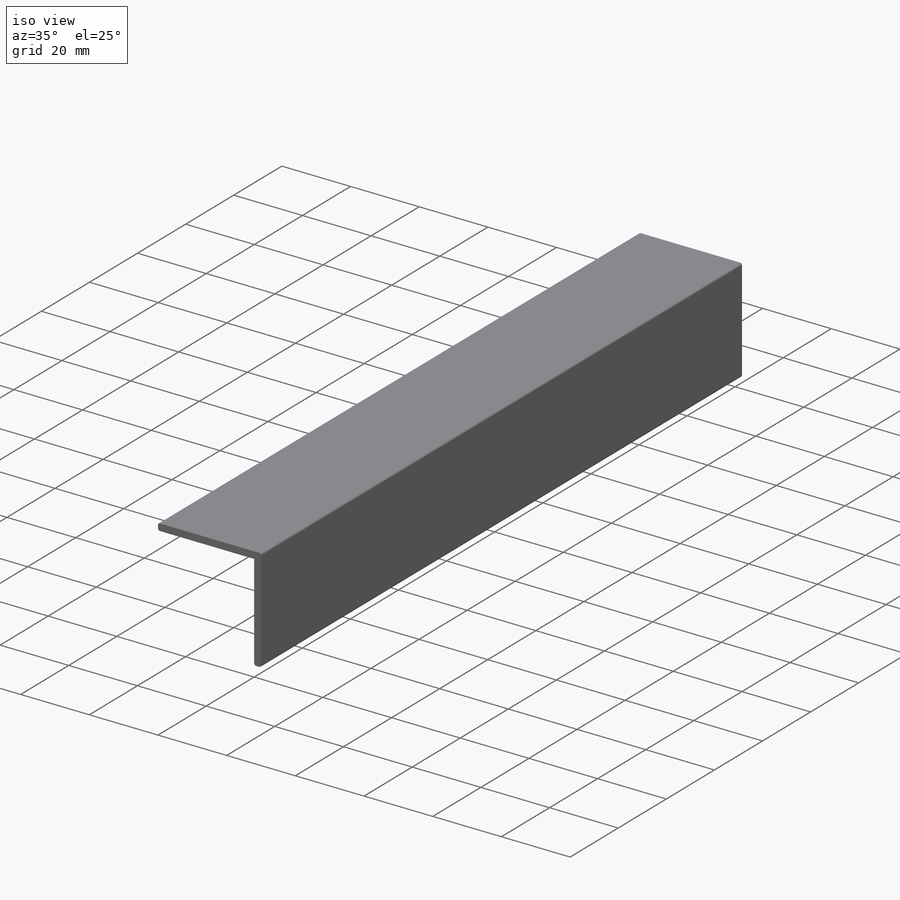
[diagram: iso view]
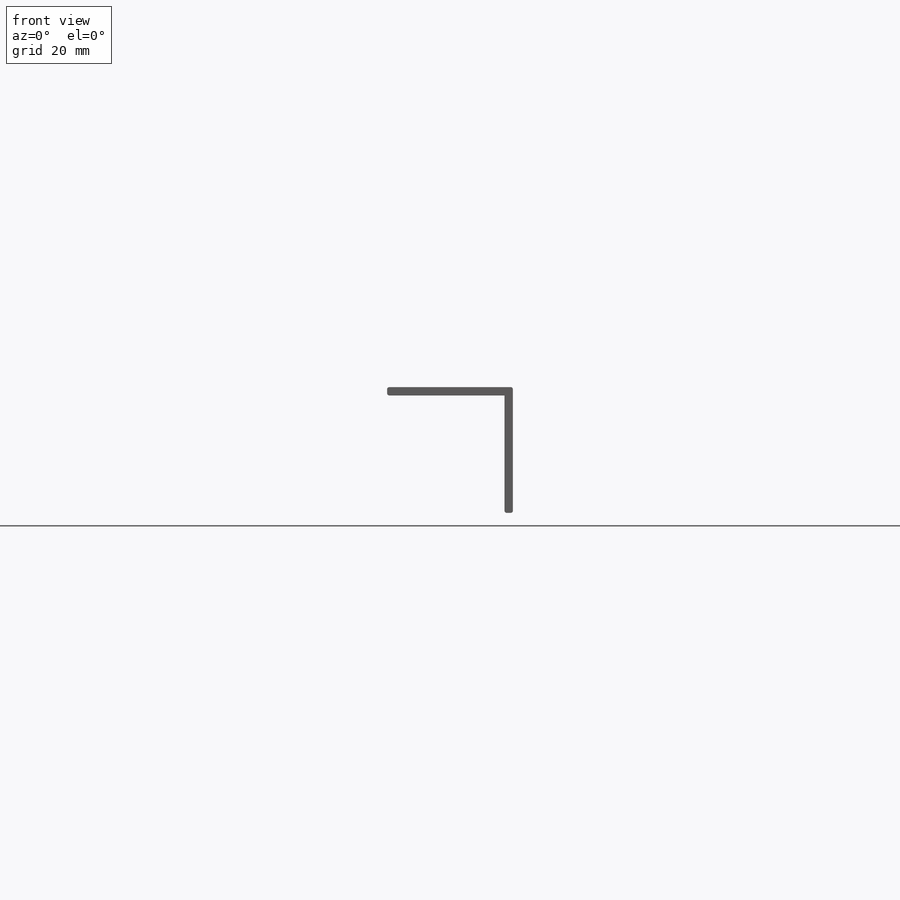
[diagram: front view]
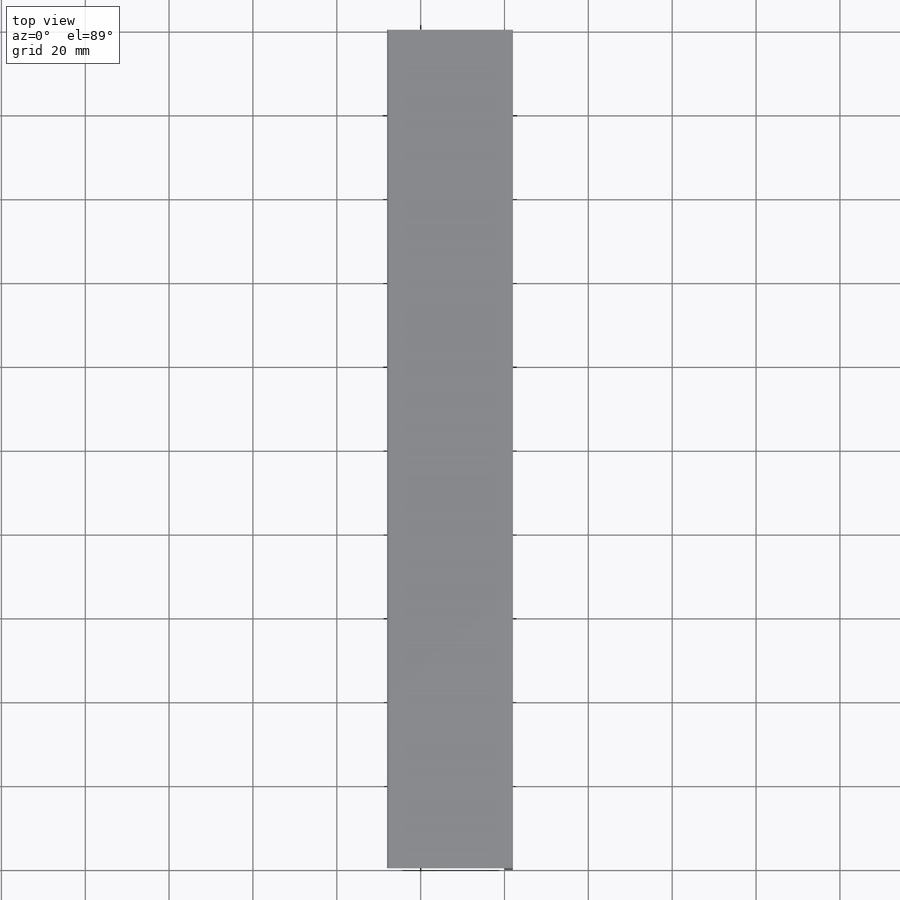
[diagram: top view]
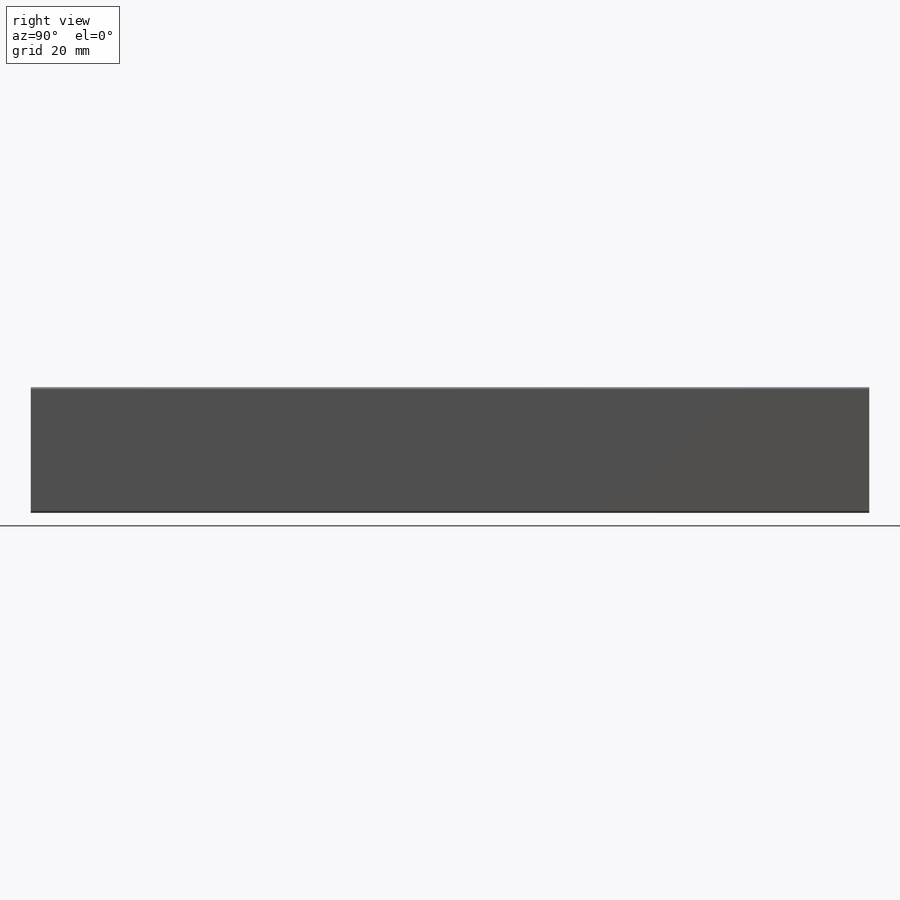
[diagram: right view]
SOLIDWORKS PART (.sldprt)
format: sldprt  version: not decoded by parser v0  size: 508,928 bytes
history: native  units: mm
features: sketch x11, hole x4, material x1, extrude x1, fillet x1, pattern_linear x1 (+13 scaffold rows collapsed)
feature tree (32):
  scaffold x13  (default folders/planes/origin — collapsed)
  material  "Material <not specified>"
  sketch  "Sketch1"  dims[D1=28.0mm]
  extrude  "Extrude1"  Depth=200mm
  fillet  "Fillet1"  Radius=0.5mm
  sketch  "Sketch2"  dims[D1=200.0mm]
  hole  "CSK for M4 Countersunk Flat Head Screw1"  Diameter=4.5mm Depth=2mm
  sketch  "3DSketch2"
  sketch  "Sketch4"  dims[hole-wizard template sketch: 55 standard entries collapsed; hole parameters kept: c17.Thru Hole Depth=2.0mm c17.Near C'Sink Dia.=9.4mm c17.D4=~3.666174mm c17.Near C'Sink Angle=90.0deg]
  hole  "CSK for M3 Countersunk Flat Head Screw1"  Diameter=3.4mm Depth=2mm
  sketch  "3DSketch3"
  sketch  "Sketch5"  dims[hole-wizard template sketch: 59 standard entries collapsed; hole parameters above]
  hole  "CSK for M3 Countersunk Flat Head Screw2"  Diameter=3.4mm Depth=2mm
  sketch  "3DSketch4"
  sketch  "Sketch6"  dims[hole-wizard template sketch: 59 standard entries collapsed; hole parameters above]
  sketch  "Sketch7"
  hole  "M3 Tapped Hole1"  Diameter=3mm Depth=2.001mm
  sketch  "3DSketch5"
  sketch  "Sketch9"  dims[hole-wizard template sketch: 60 standard entries collapsed; hole parameters kept: c18.Thru Tap Drill Depth=2.001mm]
  pattern_linear  "LPattern1"  Count1=6 Count2=1 Spacing1=38.4mm Spacing2=50mm
decode coverage: 13 of 18 modeling features carry decoded parameters
note: ~ marks probable driven/reference dimensions
summary: Diameter pulled from absorbed wizard sketch
note: suppression state not decoded; provenance and decode notes live in map.json
